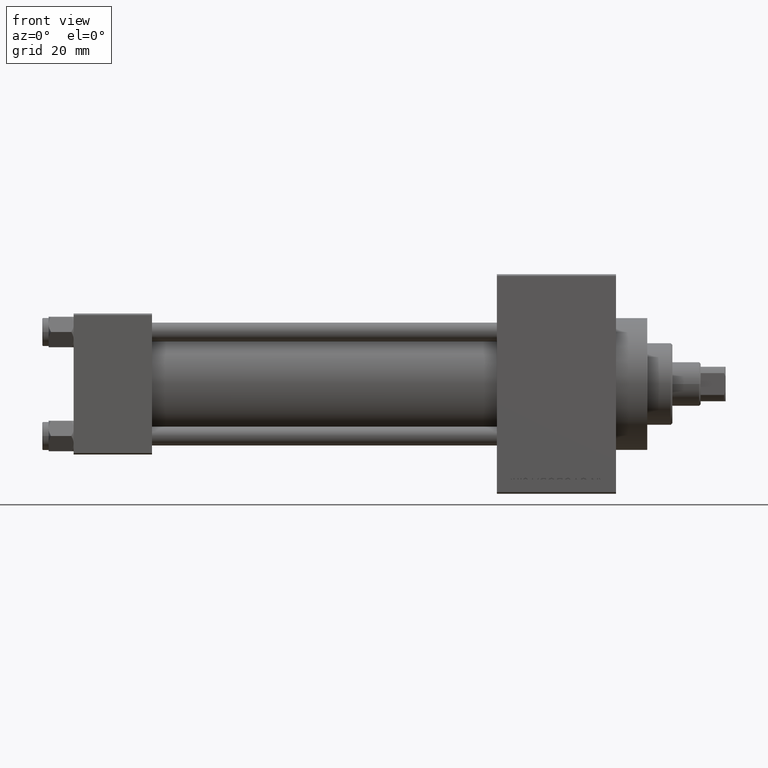
[diagram: clean part render]
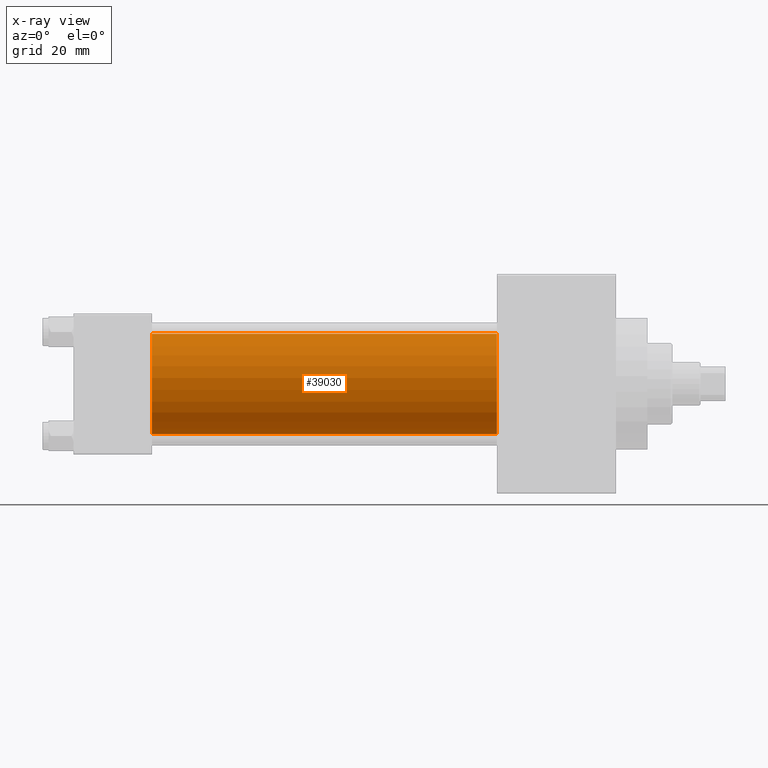
[diagram: x-ray — body ghosted, one internal face saturated and labeled with its STEP entity id]
A machine part, front view, then the same camera in x-ray: the body is ghosted and one INTERNAL B-rep face — a face not visible from any outside direction — is saturated and labeled: STEP entity #39030.
In plain terms, the highlighted cylindrical surface (partial cylindrical patch) has radius 16 mm, axis along (-1, -0, -0).
Its self-contained STEP definition (entity closure, byte-faithful):
#354 = CARTESIAN_POINT ( 'NONE',  ( 25.00000000000000000, -6.426503353294456087E-16, -16.00000000000000000 ) ) ;
#592 = DIRECTION ( 'NONE',  ( -1.000000000000000000, -0.000000000000000000, -0.000000000000000000 ) ) ;
#770 = VERTEX_POINT ( 'NONE', #21835 ) ;
#2029 = ORIENTED_EDGE ( 'NONE', *, *, #27980, .F. ) ;
#4951 = CARTESIAN_POINT ( 'NONE',  ( 135.0000000000000000, -2.602085213965210642E-15, 0.000000000000000000 ) ) ;
#7193 = DIRECTION ( 'NONE',  ( -1.000000000000000000, -0.000000000000000000, -0.000000000000000000 ) ) ;
#8027 = FACE_OUTER_BOUND ( 'NONE', #30178, .T. ) ;
#9071 = EDGE_CURVE ( 'NONE', #18053, #39051, #43570, .T. ) ;
#10181 = ORIENTED_EDGE ( 'NONE', *, *, #36994, .T. ) ;
#10786 = CARTESIAN_POINT ( 'NONE',  ( 135.0000000000000000, -6.426503353294456087E-16, -16.00000000000000000 ) ) ;
#11515 = VECTOR ( 'NONE', #43835, 1000.000000000000000 ) ;
#12799 = CIRCLE ( 'NONE', #18920, 16.00000000000000000 ) ;
#16496 = AXIS2_PLACEMENT_3D ( 'NONE', #28226, #32054, #18171 ) ;
#17401 = DIRECTION ( 'NONE',  ( 1.000000000000000000, 0.000000000000000000, 0.000000000000000000 ) ) ;
#17402 = CARTESIAN_POINT ( 'NONE',  ( 135.0000000000000000, -6.426503353294456087E-16, -16.00000000000000000 ) ) ;
#17997 = CIRCLE ( 'NONE', #16496, 16.00000000000000000 ) ;
#18053 = VERTEX_POINT ( 'NONE', #17402 ) ;
#18171 = DIRECTION ( 'NONE',  ( 0.000000000000000000, 0.000000000000000000, -1.000000000000000000 ) ) ;
#18920 = AXIS2_PLACEMENT_3D ( 'NONE', #4951, #17401, #24102 ) ;
#21835 = CARTESIAN_POINT ( 'NONE',  ( 135.0000000000000000, -2.602085213965210642E-15, 16.00000000000000000 ) ) ;
#21837 = CARTESIAN_POINT ( 'NONE',  ( 135.0000000000000000, -2.602085213965210642E-15, 16.00000000000000000 ) ) ;
#24102 = DIRECTION ( 'NONE',  ( 0.000000000000000000, 0.000000000000000000, -1.000000000000000000 ) ) ;
#25932 = VECTOR ( 'NONE', #7193, 1000.000000000000000 ) ;
#27980 = EDGE_CURVE ( 'NONE', #44730, #39051, #17997, .T. ) ;
#28226 = CARTESIAN_POINT ( 'NONE',  ( 25.00000000000000000, -2.602085213965210642E-15, 0.000000000000000000 ) ) ;
#29305 = CARTESIAN_POINT ( 'NONE',  ( 25.00000000000000000, -2.602085213965210642E-15, 16.00000000000000000 ) ) ;
#30178 = EDGE_LOOP ( 'NONE', ( #10181, #45375, #2029, #41283 ) ) ;
#31239 = AXIS2_PLACEMENT_3D ( 'NONE', #37236, #592, #33649 ) ;
#32054 = DIRECTION ( 'NONE',  ( 1.000000000000000000, 0.000000000000000000, 0.000000000000000000 ) ) ;
#33409 = CYLINDRICAL_SURFACE ( 'NONE', #31239, 16.00000000000000000 ) ;
#33649 = DIRECTION ( 'NONE',  ( 0.000000000000000000, 0.000000000000000000, 1.000000000000000000 ) ) ;
#36994 = EDGE_CURVE ( 'NONE', #770, #18053, #12799, .T. ) ;
#37236 = CARTESIAN_POINT ( 'NONE',  ( 135.0000000000000000, -2.602085213965210642E-15, 0.000000000000000000 ) ) ;
#39030 = ADVANCED_FACE ( 'NONE', ( #8027 ), #33409, .F. ) ;
#39051 = VERTEX_POINT ( 'NONE', #354 ) ;
#41283 = ORIENTED_EDGE ( 'NONE', *, *, #45047, .F. ) ;
#43570 = LINE ( 'NONE', #10786, #25932 ) ;
#43835 = DIRECTION ( 'NONE',  ( -1.000000000000000000, -0.000000000000000000, -0.000000000000000000 ) ) ;
#44730 = VERTEX_POINT ( 'NONE', #29305 ) ;
#45047 = EDGE_CURVE ( 'NONE', #770, #44730, #47188, .T. ) ;
#45375 = ORIENTED_EDGE ( 'NONE', *, *, #9071, .T. ) ;
#47188 = LINE ( 'NONE', #21837, #11515 ) ;